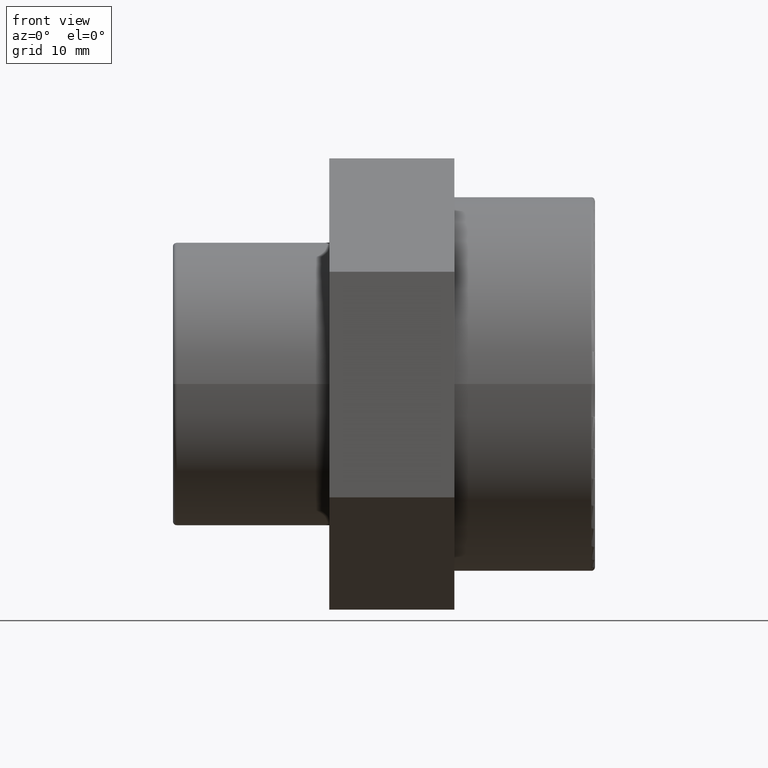
[diagram: clean part render]
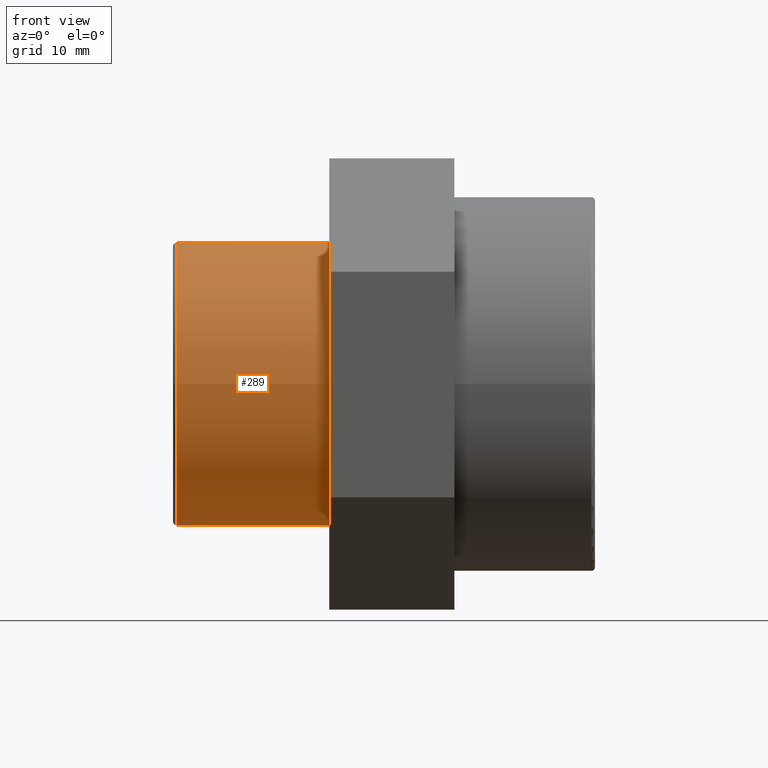
[diagram: same view with one face highlighted and labeled with its STEP entity id]
A machine part, front view. The second image highlights one B-rep face of the part: STEP entity #289.
In plain terms, the highlighted cylindrical surface (bore or boss wall) has radius 18.0877 mm, axis along (-1, -0, 0).
Its self-contained STEP definition (entity closure, byte-faithful):
#54=CYLINDRICAL_SURFACE('',#323,18.08775);
#77=FACE_BOUND('',#123,.T.);
#92=FACE_OUTER_BOUND('',#122,.T.);
#122=EDGE_LOOP('',(#230));
#123=EDGE_LOOP('',(#231));
#150=CIRCLE('',#322,18.08775);
#151=CIRCLE('',#324,18.08775);
#164=VERTEX_POINT('',#458);
#165=VERTEX_POINT('',#461);
#190=EDGE_CURVE('',#164,#164,#150,.T.);
#191=EDGE_CURVE('',#165,#165,#151,.T.);
#230=ORIENTED_EDGE('',*,*,#191,.T.);
#231=ORIENTED_EDGE('',*,*,#190,.F.);
#289=ADVANCED_FACE('',(#92,#77),#54,.T.);
#322=AXIS2_PLACEMENT_3D('',#459,#378,#379);
#323=AXIS2_PLACEMENT_3D('',#460,#380,#381);
#324=AXIS2_PLACEMENT_3D('',#462,#382,#383);
#378=DIRECTION('center_axis',(-1.,-1.83697019872103E-16,0.));
#379=DIRECTION('ref_axis',(-1.84139490753436E-16,1.,6.12323399573677E-17));
#380=DIRECTION('center_axis',(-1.,-1.83697019872103E-16,0.));
#381=DIRECTION('ref_axis',(1.84139490753436E-16,-1.,0.));
#382=DIRECTION('center_axis',(-1.,-1.83697019872103E-16,0.));
#383=DIRECTION('ref_axis',(0.,0.,1.));
#458=CARTESIAN_POINT('',(-26.52197,-18.08775,1.10755525706388E-15));
#459=CARTESIAN_POINT('Origin',(-26.52197,8.7812686409461E-17,0.));
#460=CARTESIAN_POINT('Origin',(-17.,1.83697019872103E-15,0.));
#461=CARTESIAN_POINT('',(-6.99999999999999,-18.08775,0.));
#462=CARTESIAN_POINT('Origin',(-7.,3.67394039744206E-15,0.));